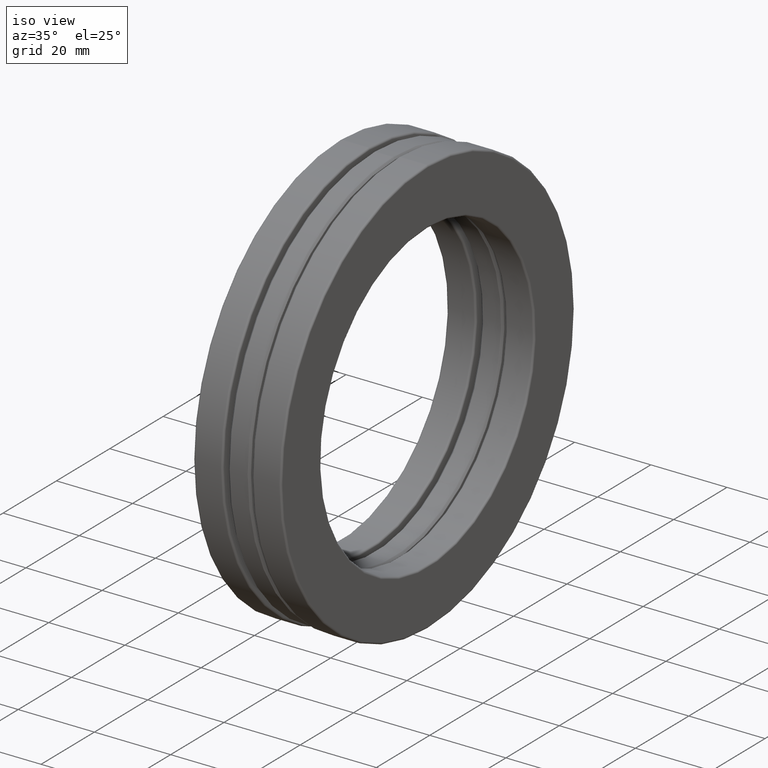
[diagram: clean part render]
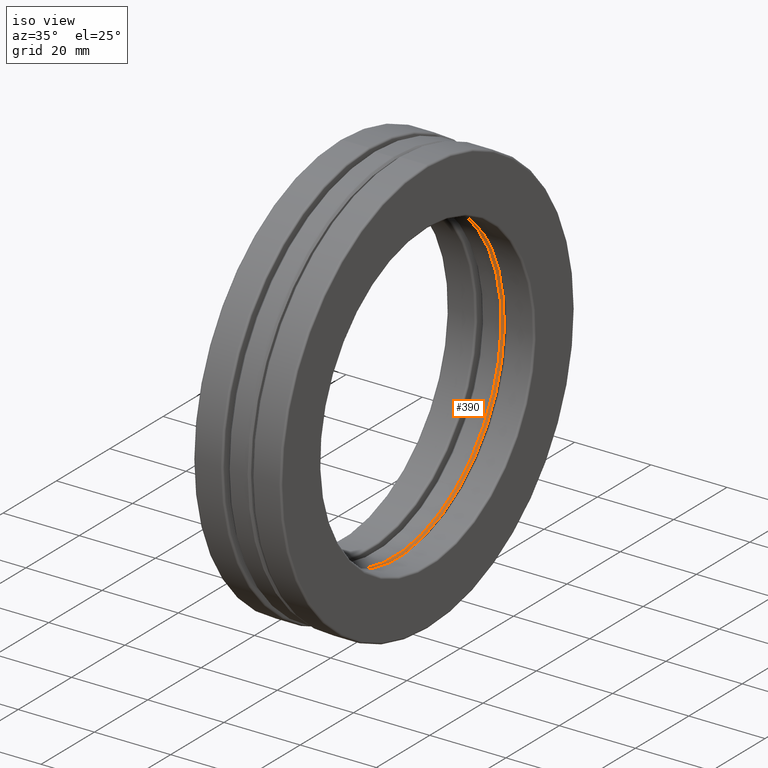
[diagram: same view with one face highlighted and labeled with its STEP entity id]
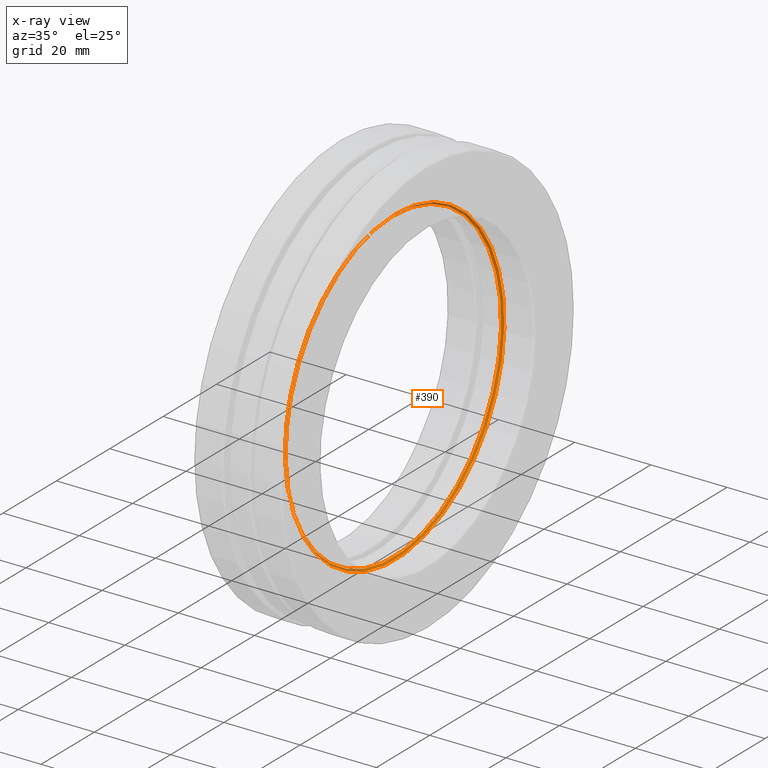
[diagram: x-ray of the same camera — body ghosted, the highlighted face saturated]
A machine part, iso view. The second image highlights one B-rep face of the part: STEP entity #390.
The next image is the same camera in x-ray: the body ghosted, the highlighted face saturated — about 7% of this face is hidden behind the body in this view.
In plain terms, the highlighted conical surface has half-angle 45 deg.
Its self-contained STEP definition (entity closure, byte-faithful):
#16 = CARTESIAN_POINT ( 'NONE',  ( 0.09325000000000002700, 0.0000000000000000000, 0.0000000000000000000 ) ) ;
#44 = ORIENTED_EDGE ( 'NONE', *, *, #232, .T. ) ;
#70 = DIRECTION ( 'NONE',  ( 0.0000000000000000000, 0.0000000000000000000, -1.000000000000000000 ) ) ;
#94 = DIRECTION ( 'NONE',  ( -1.000000000000000000, -0.0000000000000000000, -0.0000000000000000000 ) ) ;
#100 = VERTEX_POINT ( 'NONE', #793 ) ;
#192 = VERTEX_POINT ( 'NONE', #413 ) ;
#231 = AXIS2_PLACEMENT_3D ( 'NONE', #408, #94, #658 ) ;
#232 = EDGE_CURVE ( 'NONE', #192, #192, #776, .T. ) ;
#247 = CONICAL_SURFACE ( 'NONE', #276, 1.615000000000000200, 0.7853981633974491700 ) ;
#276 = AXIS2_PLACEMENT_3D ( 'NONE', #501, #445, #70 ) ;
#383 = DIRECTION ( 'NONE',  ( 0.0000000000000000000, 0.0000000000000000000, 1.000000000000000000 ) ) ;
#390 = ADVANCED_FACE ( 'NONE', ( #584, #688 ), #247, .F. ) ;
#408 = CARTESIAN_POINT ( 'NONE',  ( 0.1132500000000000500, 0.0000000000000000000, 0.0000000000000000000 ) ) ;
#413 = CARTESIAN_POINT ( 'NONE',  ( 0.09325000000000002700, 0.0000000000000000000, 1.595000000000000000 ) ) ;
#445 = DIRECTION ( 'NONE',  ( 1.000000000000000000, 0.0000000000000000000, 0.0000000000000000000 ) ) ;
#501 = CARTESIAN_POINT ( 'NONE',  ( 0.1132500000000000500, 0.0000000000000000000, 0.0000000000000000000 ) ) ;
#504 = AXIS2_PLACEMENT_3D ( 'NONE', #16, #772, #383 ) ;
#509 = EDGE_LOOP ( 'NONE', ( #44 ) ) ;
#545 = EDGE_CURVE ( 'NONE', #100, #100, #699, .T. ) ;
#551 = EDGE_LOOP ( 'NONE', ( #799 ) ) ;
#584 = FACE_BOUND ( 'NONE', #509, .T. ) ;
#658 = DIRECTION ( 'NONE',  ( 0.0000000000000000000, 0.0000000000000000000, 1.000000000000000000 ) ) ;
#688 = FACE_OUTER_BOUND ( 'NONE', #551, .T. ) ;
#699 = CIRCLE ( 'NONE', #231, 1.615000000000000200 ) ;
#772 = DIRECTION ( 'NONE',  ( -1.000000000000000000, -0.0000000000000000000, -0.0000000000000000000 ) ) ;
#776 = CIRCLE ( 'NONE', #504, 1.595000000000000000 ) ;
#793 = CARTESIAN_POINT ( 'NONE',  ( 0.1132500000000000500, 0.0000000000000000000, 1.615000000000000200 ) ) ;
#799 = ORIENTED_EDGE ( 'NONE', *, *, #545, .F. ) ;